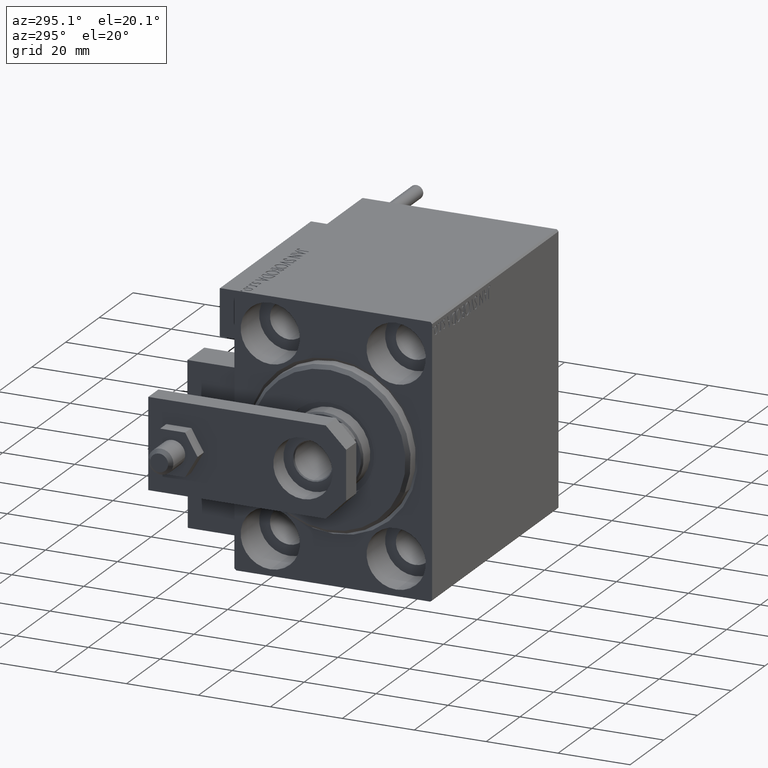
[diagram: clean part render]
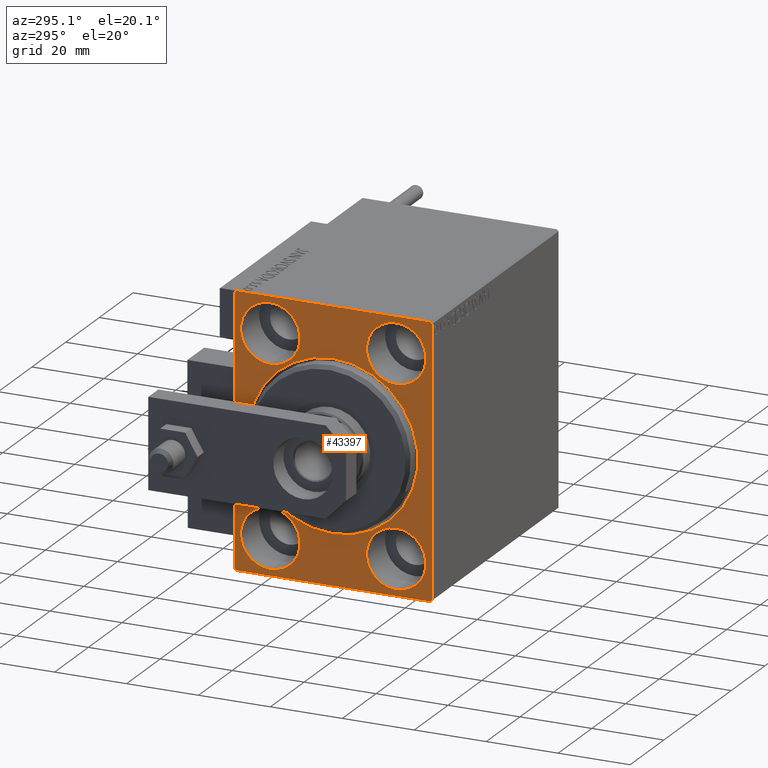
[diagram: same view with one face highlighted and labeled with its STEP entity id]
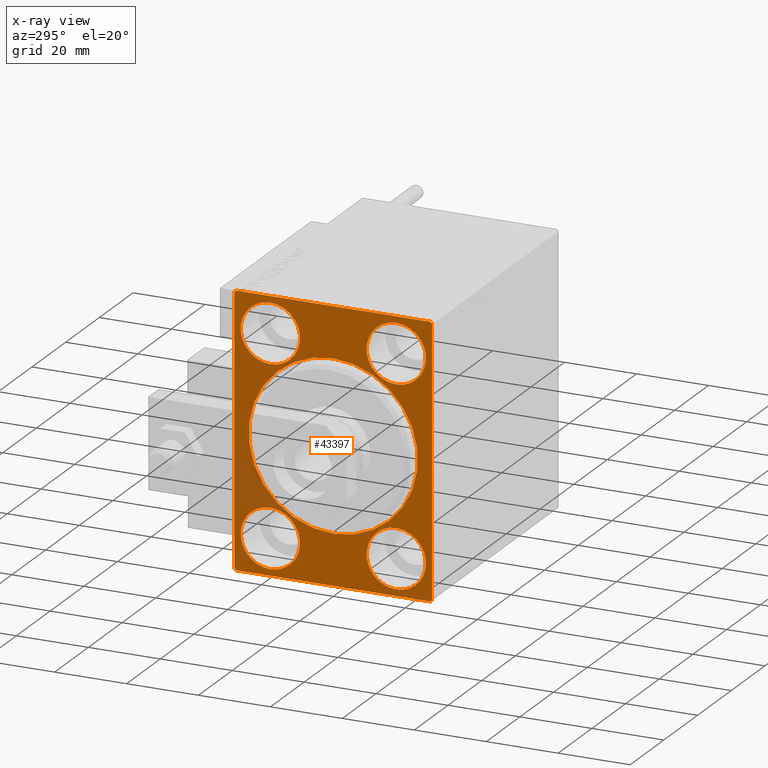
[diagram: x-ray of the same camera — body ghosted, the highlighted face saturated]
A machine part, auxiliary view. The second image highlights one B-rep face of the part: STEP entity #43397.
The next image is the same camera in x-ray: the body ghosted, the highlighted face saturated — about 7% of this face is hidden behind the body in this view.
In plain terms, the highlighted planar face has unit normal (1, 0, 0).
Its self-contained STEP definition (entity closure, byte-faithful):
#311 = CARTESIAN_POINT ( 'NONE',  ( 0.000000000000000000, -27.50000000000000355, -37.50000000000000000 ) ) ;
#1268 = LINE ( 'NONE', #24724, #36439 ) ;
#1296 = CARTESIAN_POINT ( 'NONE',  ( 0.000000000000000000, -17.49999999999999645, 35.74999999999999289 ) ) ;
#1530 = CARTESIAN_POINT ( 'NONE',  ( 0.000000000000000000, 17.49999999999999645, -27.50000000000000355 ) ) ;
#1636 = VERTEX_POINT ( 'NONE', #39913 ) ;
#1760 = VERTEX_POINT ( 'NONE', #1296 ) ;
#1834 = AXIS2_PLACEMENT_3D ( 'NONE', #42577, #31465, #12039 ) ;
#2018 = CARTESIAN_POINT ( 'NONE',  ( 0.000000000000000000, 27.49999999999999645, 37.50000000000000711 ) ) ;
#2062 = EDGE_LOOP ( 'NONE', ( #27845, #16088 ) ) ;
#2070 = VERTEX_POINT ( 'NONE', #7580 ) ;
#2336 = FACE_BOUND ( 'NONE', #30729, .T. ) ;
#2513 = EDGE_LOOP ( 'NONE', ( #14533, #8981 ) ) ;
#2578 = EDGE_CURVE ( 'NONE', #29584, #43247, #30603, .T. ) ;
#2603 = LINE ( 'NONE', #22015, #27496 ) ;
#2835 = CARTESIAN_POINT ( 'NONE',  ( 0.000000000000000000, 0.000000000000000000, 0.000000000000000000 ) ) ;
#2855 = DIRECTION ( 'NONE',  ( -0.000000000000000000, 0.7071067811865426878, -0.7071067811865524577 ) ) ;
#2975 = ORIENTED_EDGE ( 'NONE', *, *, #2578, .F. ) ;
#3111 = DIRECTION ( 'NONE',  ( 0.000000000000000000, 0.000000000000000000, 1.000000000000000000 ) ) ;
#3235 = DIRECTION ( 'NONE',  ( 1.000000000000000000, 0.000000000000000000, 0.000000000000000000 ) ) ;
#3365 = CARTESIAN_POINT ( 'NONE',  ( 0.000000000000000000, 17.49999999999999645, -27.50000000000000355 ) ) ;
#3449 = CARTESIAN_POINT ( 'NONE',  ( 0.000000000000000000, 2.877919977996280715E-15, -23.50000000000000355 ) ) ;
#4144 = CARTESIAN_POINT ( 'NONE',  ( 0.000000000000000000, 27.50000000000000355, -37.00000000000000000 ) ) ;
#4587 = EDGE_CURVE ( 'NONE', #19988, #45128, #49399, .T. ) ;
#4589 = DIRECTION ( 'NONE',  ( -1.000000000000000000, 0.000000000000000000, 0.000000000000000000 ) ) ;
#4858 = CARTESIAN_POINT ( 'NONE',  ( 0.000000000000000000, 17.50000000000000355, 27.49999999999999645 ) ) ;
#5091 = DIRECTION ( 'NONE',  ( 0.000000000000000000, 0.000000000000000000, 1.000000000000000000 ) ) ;
#5462 = CARTESIAN_POINT ( 'NONE',  ( 0.000000000000000000, 0.000000000000000000, 23.50000000000000355 ) ) ;
#5873 = ORIENTED_EDGE ( 'NONE', *, *, #4587, .F. ) ;
#6125 = FACE_BOUND ( 'NONE', #2513, .T. ) ;
#6593 = CIRCLE ( 'NONE', #13817, 8.250000000000000000 ) ;
#6665 = VECTOR ( 'NONE', #22126, 1000.000000000000000 ) ;
#6709 = EDGE_LOOP ( 'NONE', ( #37785, #17764 ) ) ;
#6767 = CARTESIAN_POINT ( 'NONE',  ( 0.000000000000000000, -17.50000000000000355, -19.25000000000000355 ) ) ;
#6885 = AXIS2_PLACEMENT_3D ( 'NONE', #4858, #36383, #13169 ) ;
#7580 = CARTESIAN_POINT ( 'NONE',  ( 0.000000000000000000, 17.49999999999999645, -35.75000000000000711 ) ) ;
#8564 = AXIS2_PLACEMENT_3D ( 'NONE', #27052, #4589, #15698 ) ;
#8953 = CARTESIAN_POINT ( 'NONE',  ( 0.000000000000000000, 27.49999999999999645, 37.00000000000001421 ) ) ;
#8981 = ORIENTED_EDGE ( 'NONE', *, *, #20516, .F. ) ;
#9430 = CIRCLE ( 'NONE', #15875, 8.249999999999992895 ) ;
#9474 = VERTEX_POINT ( 'NONE', #15325 ) ;
#9653 = FACE_BOUND ( 'NONE', #2062, .T. ) ;
#10467 = ORIENTED_EDGE ( 'NONE', *, *, #35843, .T. ) ;
#11414 = VERTEX_POINT ( 'NONE', #5462 ) ;
#12039 = DIRECTION ( 'NONE',  ( 0.000000000000000000, 0.000000000000000000, 1.000000000000000000 ) ) ;
#12899 = CARTESIAN_POINT ( 'NONE',  ( 0.000000000000000000, 27.50000000000000355, -37.00000000000000000 ) ) ;
#12908 = CARTESIAN_POINT ( 'NONE',  ( 0.000000000000000000, -17.49999999999999645, 19.25000000000000000 ) ) ;
#13169 = DIRECTION ( 'NONE',  ( 0.000000000000000000, 0.000000000000000000, 1.000000000000000000 ) ) ;
#13374 = CIRCLE ( 'NONE', #8564, 8.250000000000000000 ) ;
#13561 = LINE ( 'NONE', #18101, #36578 ) ;
#13817 = AXIS2_PLACEMENT_3D ( 'NONE', #1530, #39899, #39646 ) ;
#13854 = CARTESIAN_POINT ( 'NONE',  ( 0.000000000000000000, -17.49999999999999645, 27.49999999999999645 ) ) ;
#14152 = EDGE_CURVE ( 'NONE', #37561, #1636, #27036, .T. ) ;
#14198 = ORIENTED_EDGE ( 'NONE', *, *, #49882, .F. ) ;
#14248 = AXIS2_PLACEMENT_3D ( 'NONE', #47454, #42660, #32031 ) ;
#14442 = LINE ( 'NONE', #17981, #48060 ) ;
#14533 = ORIENTED_EDGE ( 'NONE', *, *, #35076, .F. ) ;
#15325 = CARTESIAN_POINT ( 'NONE',  ( 0.000000000000000000, -27.50000000000000355, -37.00000000000000000 ) ) ;
#15698 = DIRECTION ( 'NONE',  ( 0.000000000000000000, 0.000000000000000000, 1.000000000000000000 ) ) ;
#15875 = AXIS2_PLACEMENT_3D ( 'NONE', #13854, #43914, #17389 ) ;
#15998 = ORIENTED_EDGE ( 'NONE', *, *, #44944, .F. ) ;
#16088 = ORIENTED_EDGE ( 'NONE', *, *, #14152, .F. ) ;
#16166 = DIRECTION ( 'NONE',  ( 0.000000000000000000, -9.251858538542970348E-17, 1.000000000000000000 ) ) ;
#16216 = VERTEX_POINT ( 'NONE', #12908 ) ;
#17194 = EDGE_CURVE ( 'NONE', #29566, #11414, #23898, .T. ) ;
#17240 = ORIENTED_EDGE ( 'NONE', *, *, #34955, .T. ) ;
#17389 = DIRECTION ( 'NONE',  ( 0.000000000000000000, 0.000000000000000000, 1.000000000000000000 ) ) ;
#17764 = ORIENTED_EDGE ( 'NONE', *, *, #17194, .T. ) ;
#17981 = CARTESIAN_POINT ( 'NONE',  ( 0.000000000000000000, -27.00000000000000355, -37.50000000000000000 ) ) ;
#18101 = CARTESIAN_POINT ( 'NONE',  ( 0.000000000000000000, -27.50000000000000355, 37.50000000000000000 ) ) ;
#18266 = EDGE_CURVE ( 'NONE', #16216, #1760, #9430, .T. ) ;
#18751 = VECTOR ( 'NONE', #48172, 1000.000000000000114 ) ;
#18960 = VERTEX_POINT ( 'NONE', #40073 ) ;
#19038 = EDGE_LOOP ( 'NONE', ( #5873, #14198 ) ) ;
#19465 = CIRCLE ( 'NONE', #24404, 8.249999999999992895 ) ;
#19848 = CARTESIAN_POINT ( 'NONE',  ( 0.000000000000000000, 17.50000000000000355, 19.25000000000000000 ) ) ;
#19988 = VERTEX_POINT ( 'NONE', #6767 ) ;
#20516 = EDGE_CURVE ( 'NONE', #2070, #42210, #49820, .T. ) ;
#21129 = CARTESIAN_POINT ( 'NONE',  ( 0.000000000000000000, -27.00000000000001776, 37.50000000000000000 ) ) ;
#21260 = VERTEX_POINT ( 'NONE', #28826 ) ;
#22015 = CARTESIAN_POINT ( 'NONE',  ( 0.000000000000000000, 27.00000000000001066, 37.50000000000000711 ) ) ;
#22126 = DIRECTION ( 'NONE',  ( 0.000000000000000000, -1.000000000000000000, -1.261617073437677999E-16 ) ) ;
#23663 = ORIENTED_EDGE ( 'NONE', *, *, #40972, .F. ) ;
#23898 = CIRCLE ( 'NONE', #14248, 23.50000000000000355 ) ;
#24404 = AXIS2_PLACEMENT_3D ( 'NONE', #31593, #42956, #5091 ) ;
#24488 = VERTEX_POINT ( 'NONE', #8953 ) ;
#24724 = CARTESIAN_POINT ( 'NONE',  ( 0.000000000000000000, 27.50000000000000355, -37.50000000000000000 ) ) ;
#24741 = DIRECTION ( 'NONE',  ( 0.000000000000000000, -0.7071067811865474617, -0.7071067811865474617 ) ) ;
#26180 = CARTESIAN_POINT ( 'NONE',  ( 0.000000000000000000, 27.00000000000000355, -37.50000000000000000 ) ) ;
#27005 = EDGE_CURVE ( 'NONE', #1636, #37561, #40160, .T. ) ;
#27036 = CIRCLE ( 'NONE', #6885, 8.249999999999992895 ) ;
#27052 = CARTESIAN_POINT ( 'NONE',  ( 0.000000000000000000, -17.50000000000000355, -27.50000000000000355 ) ) ;
#27496 = VECTOR ( 'NONE', #2855, 1000.000000000000000 ) ;
#27845 = ORIENTED_EDGE ( 'NONE', *, *, #27005, .F. ) ;
#27888 = DIRECTION ( 'NONE',  ( 0.000000000000000000, 0.000000000000000000, 1.000000000000000000 ) ) ;
#28386 = EDGE_LOOP ( 'NONE', ( #15998, #35769, #23663, #17240, #46842, #10467, #2975, #31457 ) ) ;
#28826 = CARTESIAN_POINT ( 'NONE',  ( 0.000000000000000000, 27.00000000000001066, 37.50000000000000711 ) ) ;
#29219 = DIRECTION ( 'NONE',  ( 0.000000000000000000, 0.000000000000000000, -1.000000000000000000 ) ) ;
#29566 = VERTEX_POINT ( 'NONE', #3449 ) ;
#29584 = VERTEX_POINT ( 'NONE', #48885 ) ;
#29827 = DIRECTION ( 'NONE',  ( 1.000000000000000000, 0.000000000000000000, 0.000000000000000000 ) ) ;
#30603 = LINE ( 'NONE', #311, #35627 ) ;
#30729 = EDGE_LOOP ( 'NONE', ( #30808, #40303 ) ) ;
#30808 = ORIENTED_EDGE ( 'NONE', *, *, #39284, .F. ) ;
#31457 = ORIENTED_EDGE ( 'NONE', *, *, #48953, .T. ) ;
#31465 = DIRECTION ( 'NONE',  ( -1.000000000000000000, 0.000000000000000000, 0.000000000000000000 ) ) ;
#31593 = CARTESIAN_POINT ( 'NONE',  ( 0.000000000000000000, -17.49999999999999645, 27.49999999999999645 ) ) ;
#31691 = AXIS2_PLACEMENT_3D ( 'NONE', #2835, #29827, #48278 ) ;
#31706 = CARTESIAN_POINT ( 'NONE',  ( 0.000000000000000000, -17.50000000000000355, -35.75000000000000711 ) ) ;
#31831 = LINE ( 'NONE', #12899, #44457 ) ;
#32031 = DIRECTION ( 'NONE',  ( 0.000000000000000000, 0.000000000000000000, -1.000000000000000000 ) ) ;
#32425 = DIRECTION ( 'NONE',  ( -1.000000000000000000, 0.000000000000000000, 0.000000000000000000 ) ) ;
#32761 = CARTESIAN_POINT ( 'NONE',  ( 0.000000000000000000, -27.50000000000000355, 37.00000000000001421 ) ) ;
#33049 = VERTEX_POINT ( 'NONE', #4144 ) ;
#33511 = CARTESIAN_POINT ( 'NONE',  ( 0.000000000000000000, 17.49999999999999645, -19.25000000000000355 ) ) ;
#33603 = VERTEX_POINT ( 'NONE', #21129 ) ;
#34488 = EDGE_CURVE ( 'NONE', #11414, #29566, #45270, .T. ) ;
#34955 = EDGE_CURVE ( 'NONE', #21260, #24488, #2603, .T. ) ;
#35076 = EDGE_CURVE ( 'NONE', #42210, #2070, #6593, .T. ) ;
#35627 = VECTOR ( 'NONE', #49788, 1000.000000000000000 ) ;
#35769 = ORIENTED_EDGE ( 'NONE', *, *, #37449, .T. ) ;
#35843 = EDGE_CURVE ( 'NONE', #33049, #43247, #31831, .T. ) ;
#36383 = DIRECTION ( 'NONE',  ( -1.000000000000000000, 0.000000000000000000, 0.000000000000000000 ) ) ;
#36439 = VECTOR ( 'NONE', #16166, 1000.000000000000000 ) ;
#36578 = VECTOR ( 'NONE', #29219, 1000.000000000000000 ) ;
#36901 = FACE_OUTER_BOUND ( 'NONE', #28386, .T. ) ;
#37049 = CARTESIAN_POINT ( 'NONE',  ( 0.000000000000000000, 0.000000000000000000, 0.000000000000000000 ) ) ;
#37403 = FACE_BOUND ( 'NONE', #19038, .T. ) ;
#37449 = EDGE_CURVE ( 'NONE', #18960, #33603, #40335, .T. ) ;
#37561 = VERTEX_POINT ( 'NONE', #19848 ) ;
#37785 = ORIENTED_EDGE ( 'NONE', *, *, #34488, .T. ) ;
#39284 = EDGE_CURVE ( 'NONE', #1760, #16216, #19465, .T. ) ;
#39646 = DIRECTION ( 'NONE',  ( 0.000000000000000000, 0.000000000000000000, 1.000000000000000000 ) ) ;
#39899 = DIRECTION ( 'NONE',  ( -1.000000000000000000, 0.000000000000000000, 0.000000000000000000 ) ) ;
#39913 = CARTESIAN_POINT ( 'NONE',  ( 0.000000000000000000, 17.50000000000000355, 35.74999999999999289 ) ) ;
#40073 = CARTESIAN_POINT ( 'NONE',  ( 0.000000000000000000, -27.50000000000000355, 37.00000000000001421 ) ) ;
#40160 = CIRCLE ( 'NONE', #49869, 8.249999999999992895 ) ;
#40303 = ORIENTED_EDGE ( 'NONE', *, *, #18266, .F. ) ;
#40335 = LINE ( 'NONE', #32761, #18751 ) ;
#40782 = EDGE_CURVE ( 'NONE', #33049, #24488, #1268, .T. ) ;
#40972 = EDGE_CURVE ( 'NONE', #21260, #33603, #49641, .T. ) ;
#41438 = PLANE ( 'NONE',  #31691 ) ;
#42210 = VERTEX_POINT ( 'NONE', #33511 ) ;
#42570 = AXIS2_PLACEMENT_3D ( 'NONE', #3365, #49541, #3111 ) ;
#42577 = CARTESIAN_POINT ( 'NONE',  ( 0.000000000000000000, -17.50000000000000355, -27.50000000000000355 ) ) ;
#42660 = DIRECTION ( 'NONE',  ( 1.000000000000000000, 0.000000000000000000, 0.000000000000000000 ) ) ;
#42956 = DIRECTION ( 'NONE',  ( -1.000000000000000000, 0.000000000000000000, 0.000000000000000000 ) ) ;
#43247 = VERTEX_POINT ( 'NONE', #26180 ) ;
#43397 = ADVANCED_FACE ( 'NONE', ( #48527, #6125, #2336, #9653, #37403, #36901 ), #41438, .F. ) ;
#43914 = DIRECTION ( 'NONE',  ( -1.000000000000000000, 0.000000000000000000, 0.000000000000000000 ) ) ;
#44457 = VECTOR ( 'NONE', #24741, 1000.000000000000114 ) ;
#44944 = EDGE_CURVE ( 'NONE', #18960, #9474, #13561, .T. ) ;
#45128 = VERTEX_POINT ( 'NONE', #31706 ) ;
#45261 = DIRECTION ( 'NONE',  ( -0.000000000000000000, -0.7071067811865474617, 0.7071067811865474617 ) ) ;
#45270 = CIRCLE ( 'NONE', #48464, 23.50000000000000355 ) ;
#46842 = ORIENTED_EDGE ( 'NONE', *, *, #40782, .F. ) ;
#46853 = CARTESIAN_POINT ( 'NONE',  ( 0.000000000000000000, 17.50000000000000355, 27.49999999999999645 ) ) ;
#47454 = CARTESIAN_POINT ( 'NONE',  ( 0.000000000000000000, 0.000000000000000000, 0.000000000000000000 ) ) ;
#48060 = VECTOR ( 'NONE', #45261, 1000.000000000000114 ) ;
#48172 = DIRECTION ( 'NONE',  ( -0.000000000000000000, 0.7071067811865474617, 0.7071067811865474617 ) ) ;
#48278 = DIRECTION ( 'NONE',  ( 0.000000000000000000, 0.000000000000000000, -1.000000000000000000 ) ) ;
#48464 = AXIS2_PLACEMENT_3D ( 'NONE', #37049, #3235, #48674 ) ;
#48527 = FACE_BOUND ( 'NONE', #6709, .T. ) ;
#48674 = DIRECTION ( 'NONE',  ( 0.000000000000000000, 0.000000000000000000, -1.000000000000000000 ) ) ;
#48885 = CARTESIAN_POINT ( 'NONE',  ( 0.000000000000000000, -27.00000000000000355, -37.50000000000000000 ) ) ;
#48953 = EDGE_CURVE ( 'NONE', #29584, #9474, #14442, .T. ) ;
#49399 = CIRCLE ( 'NONE', #1834, 8.250000000000000000 ) ;
#49541 = DIRECTION ( 'NONE',  ( -1.000000000000000000, 0.000000000000000000, 0.000000000000000000 ) ) ;
#49641 = LINE ( 'NONE', #2018, #6665 ) ;
#49788 = DIRECTION ( 'NONE',  ( 0.000000000000000000, 1.000000000000000000, 0.000000000000000000 ) ) ;
#49820 = CIRCLE ( 'NONE', #42570, 8.250000000000000000 ) ;
#49869 = AXIS2_PLACEMENT_3D ( 'NONE', #46853, #32425, #27888 ) ;
#49882 = EDGE_CURVE ( 'NONE', #45128, #19988, #13374, .T. ) ;